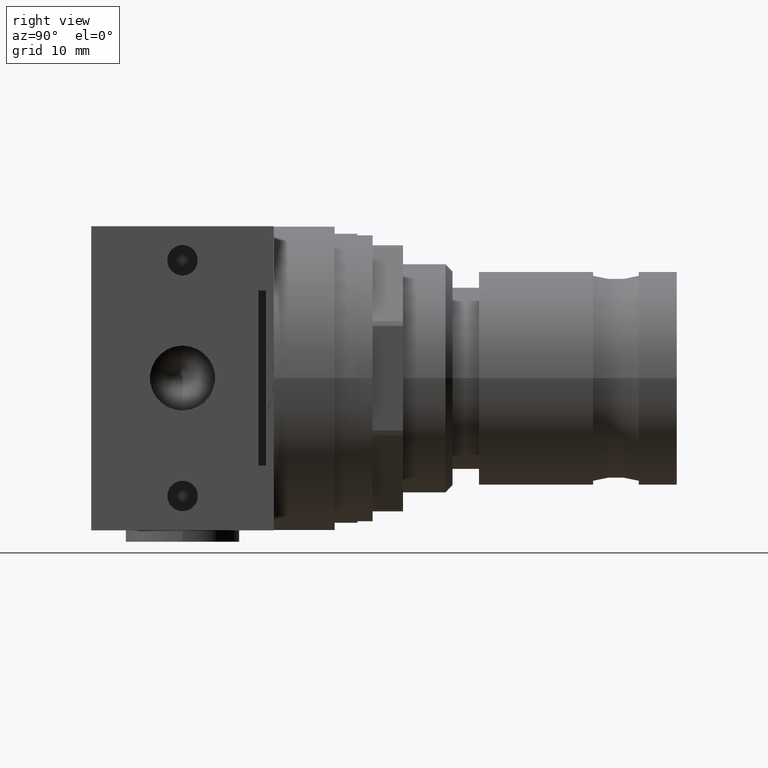
[diagram: clean part render]
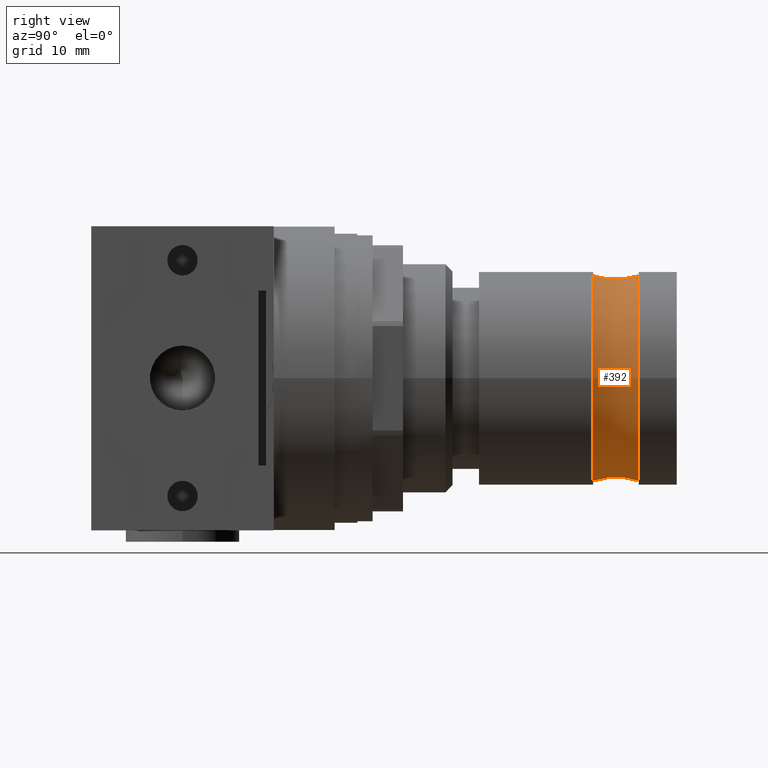
[diagram: same view with one face highlighted and labeled with its STEP entity id]
A machine part, right view. The second image highlights one B-rep face of the part: STEP entity #392.
In plain terms, the highlighted toroidal blend (fillet) surface has major radius 23.0394 mm and minor (blend) radius 10 mm.
Its self-contained STEP definition (entity closure, byte-faithful):
#392 = ADVANCED_FACE( '', ( #808, #809 ), #810, .F. );
#808 = FACE_OUTER_BOUND( '', #1253, .T. );
#809 = FACE_OUTER_BOUND( '', #1254, .T. );
#810 = TOROIDAL_SURFACE( '', #1255, 23.0393920141694, 9.99999999999998 );
#1253 = EDGE_LOOP( '', ( #2093 ) );
#1254 = EDGE_LOOP( '', ( #2094 ) );
#1255 = AXIS2_PLACEMENT_3D( '', #2095, #2096, #2097 );
#2093 = ORIENTED_EDGE( '', *, *, #2722, .F. );
#2094 = ORIENTED_EDGE( '', *, *, #2747, .T. );
#2095 = CARTESIAN_POINT( '', ( 37.0000000000000, 0.000000000000000, 0.000000000000000 ) );
#2096 = DIRECTION( '', ( 1.00000000000000, 0.000000000000000, -0.000000000000000 ) );
#2097 = DIRECTION( '', ( -0.000000000000000, 0.000000000000000, -1.00000000000000 ) );
#2722 = EDGE_CURVE( '', #3283, #3283, #3284, .T. );
#2747 = EDGE_CURVE( '', #3312, #3312, #3313, .T. );
#3283 = VERTEX_POINT( '', #4013 );
#3284 = CIRCLE( '', #4014, 13.5000000000000 );
#3312 = VERTEX_POINT( '', #4048 );
#3313 = CIRCLE( '', #4049, 13.5000000000000 );
#4013 = CARTESIAN_POINT( '', ( 40.0000000000000, 0.000000000000000, -13.5000000000000 ) );
#4014 = AXIS2_PLACEMENT_3D( '', #4490, #4491, #4492 );
#4048 = CARTESIAN_POINT( '', ( 34.0000000000000, 0.000000000000000, -13.5000000000000 ) );
#4049 = AXIS2_PLACEMENT_3D( '', #4514, #4515, #4516 );
#4490 = CARTESIAN_POINT( '', ( 40.0000000000000, 0.000000000000000, 0.000000000000000 ) );
#4491 = DIRECTION( '', ( 1.00000000000000, 0.000000000000000, -0.000000000000000 ) );
#4492 = DIRECTION( '', ( -0.000000000000000, 0.000000000000000, -1.00000000000000 ) );
#4514 = CARTESIAN_POINT( '', ( 34.0000000000000, 0.000000000000000, 0.000000000000000 ) );
#4515 = DIRECTION( '', ( 1.00000000000000, 0.000000000000000, -0.000000000000000 ) );
#4516 = DIRECTION( '', ( -0.000000000000000, 0.000000000000000, -1.00000000000000 ) );